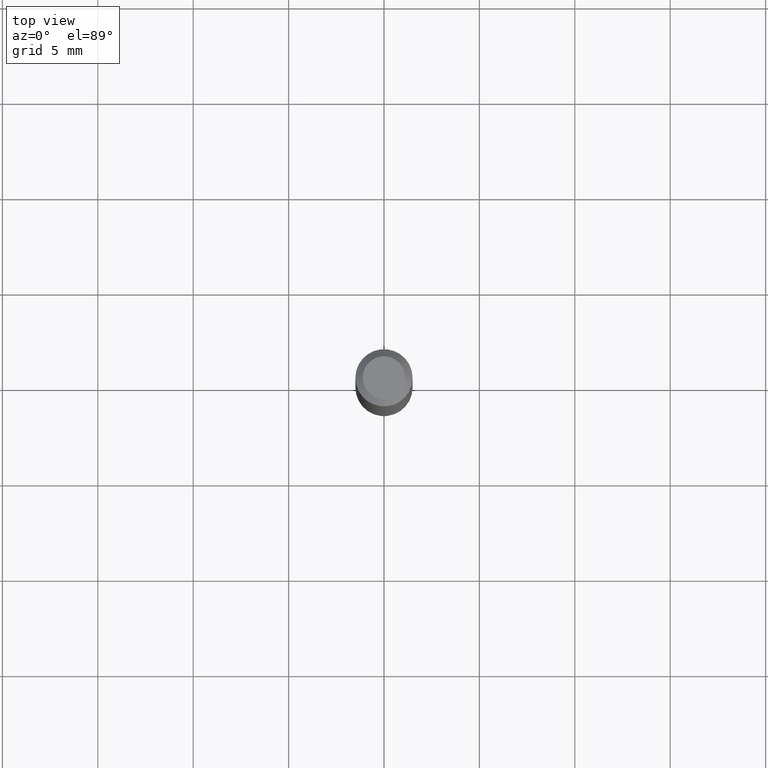
[diagram: clean part render]
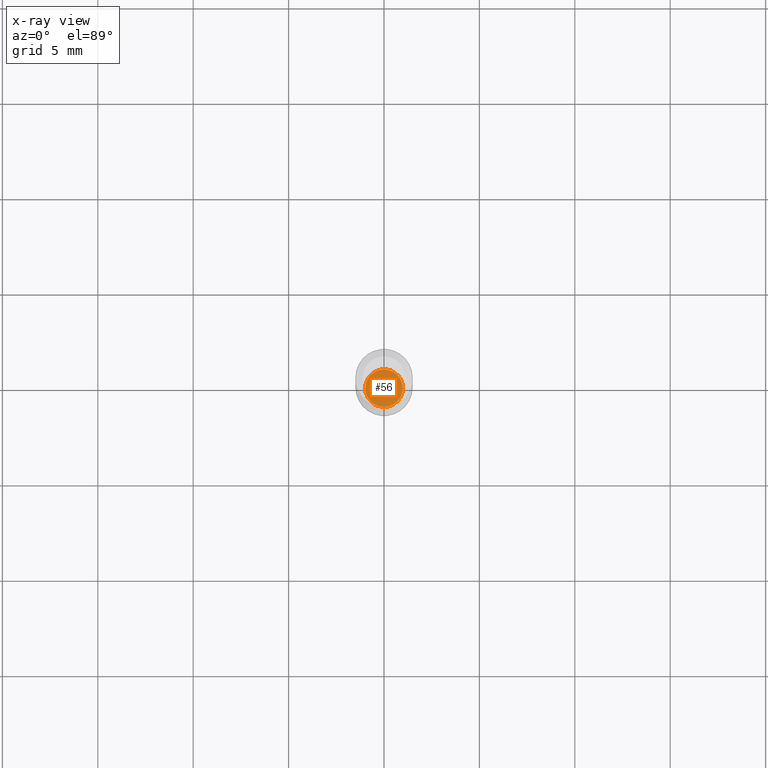
[diagram: x-ray — body ghosted, one internal face saturated and labeled with its STEP entity id]
A machine part, top view, then the same camera in x-ray: the body is ghosted and one INTERNAL B-rep face — a face not visible from any outside direction — is saturated and labeled: STEP entity #56.
In plain terms, the highlighted planar face has unit normal (-0, 0, 1).
Its self-contained STEP definition (entity closure, byte-faithful):
#51 = CARTESIAN_POINT ( 'NONE',  ( 3.061726945343791391E-29, -4.371334636231619274E-15, -1.252000000000000224 ) ) ;
#56 = ADVANCED_FACE ( 'NONE', ( #199 ), #229, .F. ) ;
#70 = AXIS2_PLACEMENT_3D ( 'NONE', #51, #451, #344 ) ;
#80 = CIRCLE ( 'NONE', #308, 0.03885000000000000259 ) ;
#97 = CARTESIAN_POINT ( 'NONE',  ( 3.061726945343791391E-29, -4.371334636231619274E-15, -1.252000000000000224 ) ) ;
#113 = AXIS2_PLACEMENT_3D ( 'NONE', #447, #310, #416 ) ;
#131 = CARTESIAN_POINT ( 'NONE',  ( -0.03885000000000000259, -4.092639556214709577E-15, -1.252000000000000224 ) ) ;
#199 = FACE_OUTER_BOUND ( 'NONE', #304, .T. ) ;
#205 = CIRCLE ( 'NONE', #113, 0.03885000000000000259 ) ;
#222 = ORIENTED_EDGE ( 'NONE', *, *, #345, .F. ) ;
#229 = PLANE ( 'NONE',  #70 ) ;
#238 = ORIENTED_EDGE ( 'NONE', *, *, #340, .F. ) ;
#264 = VERTEX_POINT ( 'NONE', #131 ) ;
#304 = EDGE_LOOP ( 'NONE', ( #222, #238 ) ) ;
#308 = AXIS2_PLACEMENT_3D ( 'NONE', #97, #382, #348 ) ;
#310 = DIRECTION ( 'NONE',  ( -2.445468806185136597E-29, 3.491481338843145583E-15, 1.000000000000000000 ) ) ;
#340 = EDGE_CURVE ( 'NONE', #264, #375, #205, .T. ) ;
#343 = CARTESIAN_POINT ( 'NONE',  ( 0.03885000000000000259, -4.642622736259730395E-15, -1.252000000000000224 ) ) ;
#344 = DIRECTION ( 'NONE',  ( 1.000000000000000000, -6.982962677686265922E-15, 4.876176775795935793E-29 ) ) ;
#345 = EDGE_CURVE ( 'NONE', #375, #264, #80, .T. ) ;
#348 = DIRECTION ( 'NONE',  ( 1.000000000000000000, -6.982962677686256455E-15, 0.000000000000000000 ) ) ;
#375 = VERTEX_POINT ( 'NONE', #343 ) ;
#382 = DIRECTION ( 'NONE',  ( -2.445468806185136597E-29, 3.491481338843145583E-15, 1.000000000000000000 ) ) ;
#416 = DIRECTION ( 'NONE',  ( 1.000000000000000000, -6.982962677686256455E-15, 0.000000000000000000 ) ) ;
#447 = CARTESIAN_POINT ( 'NONE',  ( 3.061726945343791391E-29, -4.371334636231619274E-15, -1.252000000000000224 ) ) ;
#451 = DIRECTION ( 'NONE',  ( -2.438088387897960049E-29, 3.491481338843145188E-15, 1.000000000000000000 ) ) ;